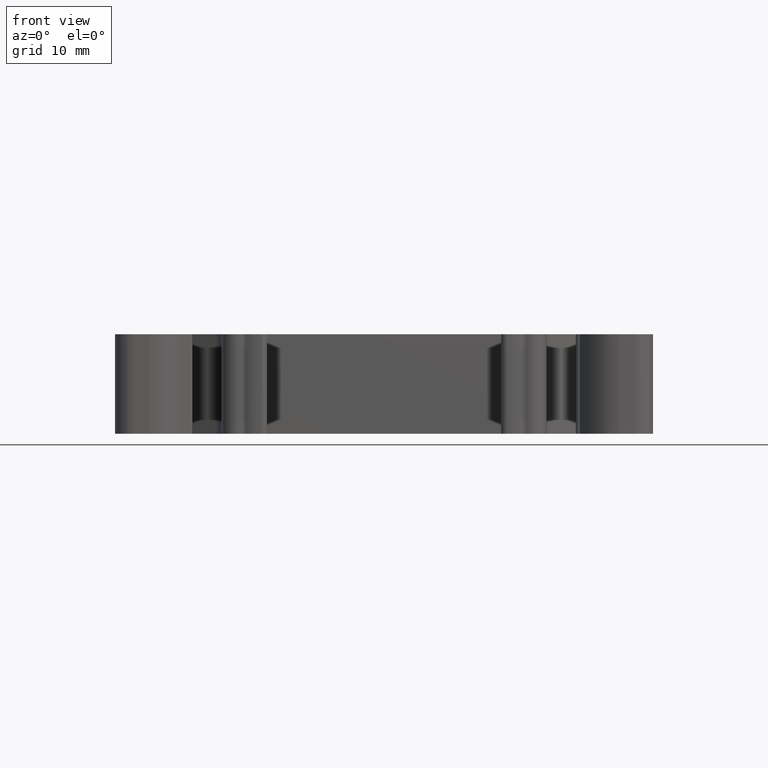
[diagram: clean part render]
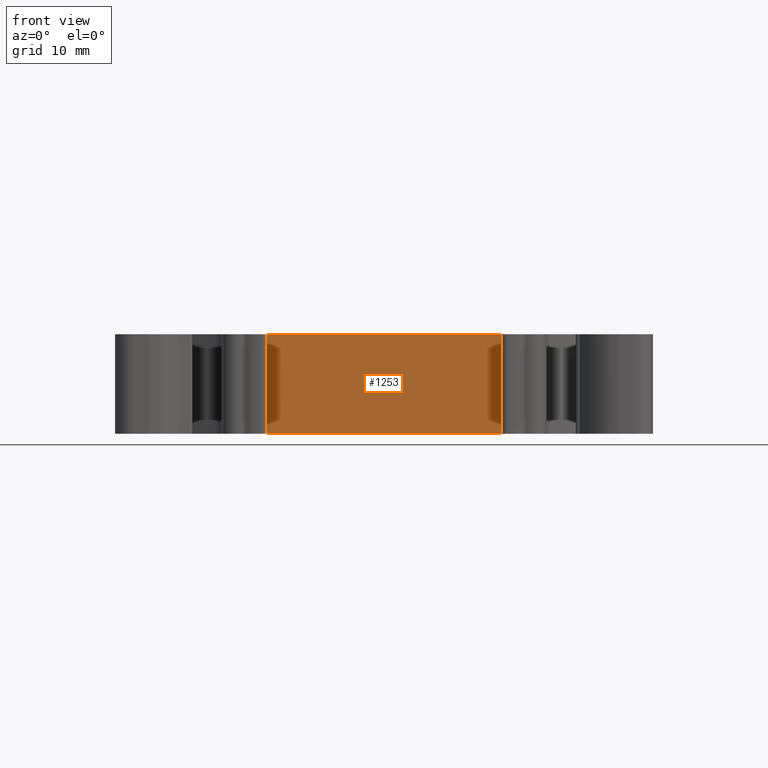
[diagram: same view with one face highlighted and labeled with its STEP entity id]
A machine part, front view. The second image highlights one B-rep face of the part: STEP entity #1253.
In plain terms, the highlighted planar face has unit normal (0, 1, 0).
Its self-contained STEP definition (entity closure, byte-faithful):
#35 = CARTESIAN_POINT ( 'NONE',  ( 1441.684277564590500, 929.3326345183193100, -2.935584425860235900 ) ) ;
#59 = DIRECTION ( 'NONE',  ( -1.000000000000000000, 0.0000000000000000000, -3.944304526105060400E-030 ) ) ;
#63 = LINE ( 'NONE', #35, #9347 ) ;
#924 = EDGE_CURVE ( 'NONE', #11624, #11652, #11805, .T. ) ;
#945 = EDGE_CURVE ( 'NONE', #11029, #11624, #63, .T. ) ;
#1253 = ADVANCED_FACE ( 'NONE', ( #2442 ), #2426, .F. ) ;
#1451 = EDGE_CURVE ( 'NONE', #11724, #11029, #3173, .T. ) ;
#2407 = DIRECTION ( 'NONE',  ( 0.0000000000000000000, 1.000000000000000000, 0.0000000000000000000 ) ) ;
#2408 = CARTESIAN_POINT ( 'NONE',  ( 1470.347148038354100, 929.3326345183193100, 25.81457739664024900 ) ) ;
#2409 = DIRECTION ( 'NONE',  ( 0.0000000000000000000, -0.0000000000000000000, 1.000000000000000000 ) ) ;
#2426 = PLANE ( 'NONE',  #8938 ) ;
#2442 = FACE_OUTER_BOUND ( 'NONE', #7565, .T. ) ;
#3130 = CARTESIAN_POINT ( 'NONE',  ( 1469.978077330386200, 929.3326345183193100, 25.81457739664024900 ) ) ;
#3167 = DIRECTION ( 'NONE',  ( -0.0000000000000000000, 0.0000000000000000000, -1.000000000000000000 ) ) ;
#3173 = LINE ( 'NONE', #3130, #9160 ) ;
#6172 = CARTESIAN_POINT ( 'NONE',  ( 1469.978077330386200, 929.3326345183193100, -2.935584425860236800 ) ) ;
#6894 = DIRECTION ( 'NONE',  ( 1.000000000000000000, 0.0000000000000000000, -0.0000000000000000000 ) ) ;
#6912 = LINE ( 'NONE', #6947, #7774 ) ;
#6947 = CARTESIAN_POINT ( 'NONE',  ( 1442.757947288439900, 929.3326345183193100, 5.263821926006720300 ) ) ;
#7565 = EDGE_LOOP ( 'NONE', ( #10487, #10430, #10495, #10466 ) ) ;
#7774 = VECTOR ( 'NONE', #6894, 1000.000000000000000 ) ;
#8420 = CARTESIAN_POINT ( 'NONE',  ( 1450.378079164946000, 929.3326345183193100, -2.935584425860236800 ) ) ;
#8490 = CARTESIAN_POINT ( 'NONE',  ( 1450.378079164946000, 929.3326345183193100, 5.263821926006721200 ) ) ;
#8564 = CARTESIAN_POINT ( 'NONE',  ( 1469.978077330386200, 929.3326345183193100, 5.263821926006721200 ) ) ;
#8938 = AXIS2_PLACEMENT_3D ( 'NONE', #2408, #2407, #2409 ) ;
#9160 = VECTOR ( 'NONE', #3167, 1000.000000000000000 ) ;
#9324 = VECTOR ( 'NONE', #11870, 1000.000000000000000 ) ;
#9347 = VECTOR ( 'NONE', #59, 1000.000000000000000 ) ;
#10430 = ORIENTED_EDGE ( 'NONE', *, *, #945, .F. ) ;
#10466 = ORIENTED_EDGE ( 'NONE', *, *, #11195, .F. ) ;
#10487 = ORIENTED_EDGE ( 'NONE', *, *, #924, .F. ) ;
#10495 = ORIENTED_EDGE ( 'NONE', *, *, #1451, .F. ) ;
#11029 = VERTEX_POINT ( 'NONE', #6172 ) ;
#11195 = EDGE_CURVE ( 'NONE', #11652, #11724, #6912, .T. ) ;
#11624 = VERTEX_POINT ( 'NONE', #8420 ) ;
#11652 = VERTEX_POINT ( 'NONE', #8490 ) ;
#11724 = VERTEX_POINT ( 'NONE', #8564 ) ;
#11805 = LINE ( 'NONE', #11807, #9324 ) ;
#11807 = CARTESIAN_POINT ( 'NONE',  ( 1450.378079164946000, 929.3326345183193100, 25.81457739664024900 ) ) ;
#11870 = DIRECTION ( 'NONE',  ( 0.0000000000000000000, -0.0000000000000000000, 1.000000000000000000 ) ) ;